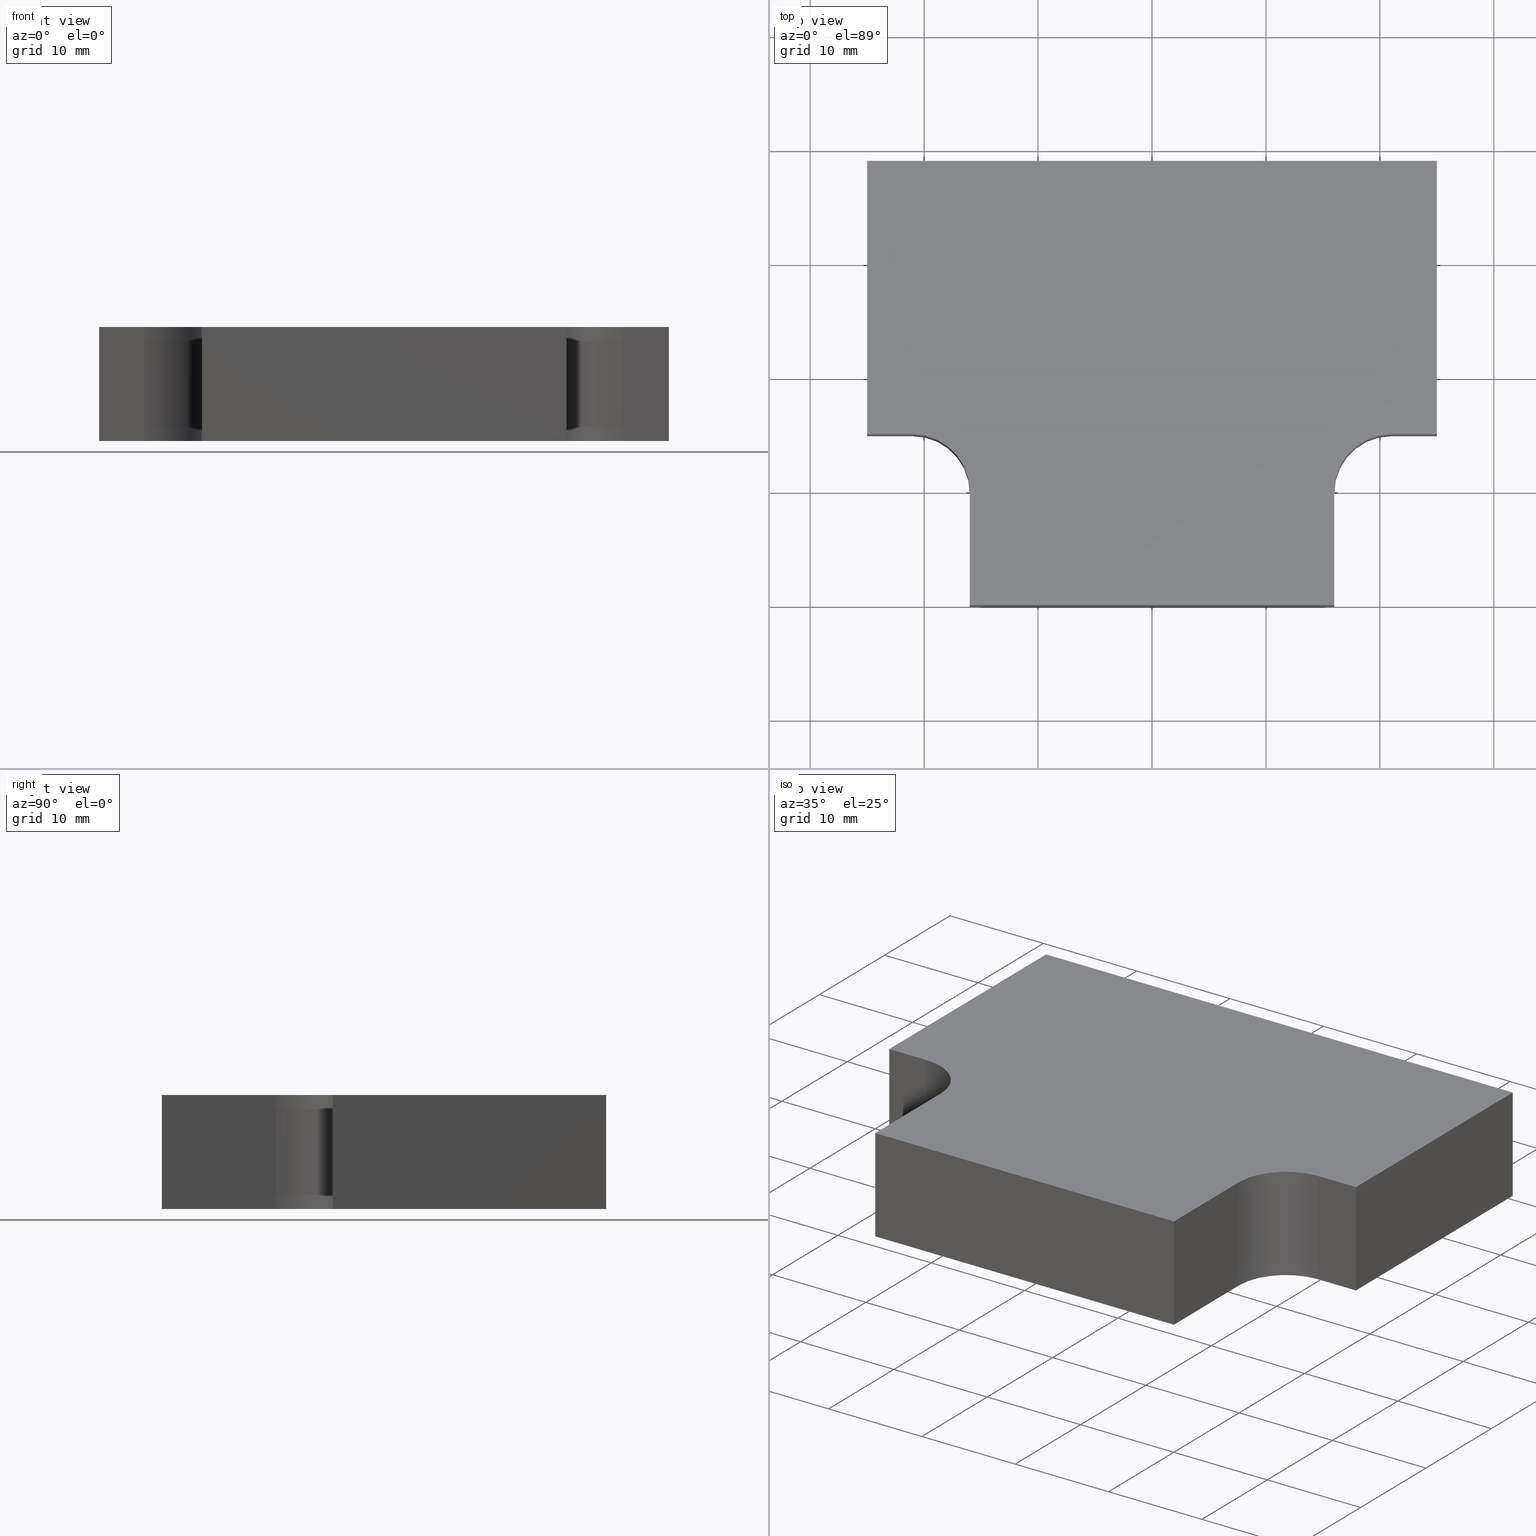
[diagram: canonical four-view strip — front | top / right | iso, engineering-drawing reading convention]
A machine part, canonical four-view strip (front | top / right | iso — engineering-drawing reading convention). The complete STEP part file that produces these views, byte-faithful:
ISO-10303-21;
HEADER;
/* Generated by software containing ST-Developer
 * from STEP Tools, Inc. (www.steptools.com) 
 */

FILE_DESCRIPTION(
/* description */ (''),
/* implementation_level */ '2;1');

FILE_NAME(
/* name */ 'E_3_01_04_15_00_WKZ-0182.stp',
/* time_stamp */ '2025-11-24T12:55:08+01:00',
/* author */ ('d.fischer'),
/* organization */ (''),
/* preprocessor_version */ 'ST-DEVELOPER v20',
/* originating_system */ 'Autodesk Inventor 2025',
/* authorisation */ '');

FILE_SCHEMA (('AUTOMOTIVE_DESIGN { 1 0 10303 214 3 1 1 }'));
ENDSEC;

DATA;
#10=MECHANICAL_DESIGN_GEOMETRIC_PRESENTATION_REPRESENTATION('',(#14,#15),
#395);
#11=SHAPE_REPRESENTATION_RELATIONSHIP('SRR','None',#402,#12);
#12=ADVANCED_BREP_SHAPE_REPRESENTATION('',(#13),#394);
#13=MANIFOLD_SOLID_BREP('Volumenk\X\F6rper1',#230);
#14=STYLED_ITEM('',(#412),#224);
#15=STYLED_ITEM('',(#411),#13);
#16=CYLINDRICAL_SURFACE('',#259,5.);
#17=CYLINDRICAL_SURFACE('',#264,5.);
#18=FACE_OUTER_BOUND('',#30,.T.);
#19=FACE_OUTER_BOUND('',#31,.T.);
#20=FACE_OUTER_BOUND('',#32,.T.);
#21=FACE_OUTER_BOUND('',#33,.T.);
#22=FACE_OUTER_BOUND('',#34,.T.);
#23=FACE_OUTER_BOUND('',#35,.T.);
#24=FACE_OUTER_BOUND('',#36,.T.);
#25=FACE_OUTER_BOUND('',#37,.T.);
#26=FACE_OUTER_BOUND('',#38,.T.);
#27=FACE_OUTER_BOUND('',#39,.T.);
#28=FACE_OUTER_BOUND('',#40,.T.);
#29=FACE_OUTER_BOUND('',#41,.T.);
#30=EDGE_LOOP('',(#148,#149,#150,#151,#152,#153,#154,#155,#156,#157));
#31=EDGE_LOOP('',(#158,#159,#160,#161));
#32=EDGE_LOOP('',(#162,#163,#164,#165));
#33=EDGE_LOOP('',(#166,#167,#168,#169));
#34=EDGE_LOOP('',(#170,#171,#172,#173));
#35=EDGE_LOOP('',(#174,#175,#176,#177));
#36=EDGE_LOOP('',(#178,#179,#180,#181));
#37=EDGE_LOOP('',(#182,#183,#184,#185));
#38=EDGE_LOOP('',(#186,#187,#188,#189));
#39=EDGE_LOOP('',(#190,#191,#192,#193));
#40=EDGE_LOOP('',(#194,#195,#196,#197));
#41=EDGE_LOOP('',(#198,#199,#200,#201,#202,#203,#204,#205,#206,#207));
#42=CIRCLE('',#254,5.);
#43=CIRCLE('',#255,5.);
#44=CIRCLE('',#260,5.);
#45=CIRCLE('',#265,5.);
#46=LINE('',#333,#72);
#47=LINE('',#335,#73);
#48=LINE('',#337,#74);
#49=LINE('',#339,#75);
#50=LINE('',#343,#76);
#51=LINE('',#345,#77);
#52=LINE('',#347,#78);
#53=LINE('',#350,#79);
#54=LINE('',#354,#80);
#55=LINE('',#355,#81);
#56=LINE('',#356,#82);
#57=LINE('',#359,#83);
#58=LINE('',#360,#84);
#59=LINE('',#363,#85);
#60=LINE('',#364,#86);
#61=LINE('',#368,#87);
#62=LINE('',#371,#88);
#63=LINE('',#372,#89);
#64=LINE('',#375,#90);
#65=LINE('',#376,#91);
#66=LINE('',#379,#92);
#67=LINE('',#380,#93);
#68=LINE('',#384,#94);
#69=LINE('',#387,#95);
#70=LINE('',#388,#96);
#71=LINE('',#390,#97);
#72=VECTOR('',#273,10.);
#73=VECTOR('',#274,10.);
#74=VECTOR('',#275,10.);
#75=VECTOR('',#276,10.);
#76=VECTOR('',#279,10.);
#77=VECTOR('',#280,10.);
#78=VECTOR('',#281,10.);
#79=VECTOR('',#284,10.);
#80=VECTOR('',#287,10.);
#81=VECTOR('',#288,10.);
#82=VECTOR('',#289,10.);
#83=VECTOR('',#292,10.);
#84=VECTOR('',#293,10.);
#85=VECTOR('',#296,10.);
#86=VECTOR('',#297,10.);
#87=VECTOR('',#302,10.);
#88=VECTOR('',#305,10.);
#89=VECTOR('',#306,10.);
#90=VECTOR('',#309,10.);
#91=VECTOR('',#310,10.);
#92=VECTOR('',#313,10.);
#93=VECTOR('',#314,10.);
#94=VECTOR('',#319,10.);
#95=VECTOR('',#322,10.);
#96=VECTOR('',#323,10.);
#97=VECTOR('',#326,10.);
#98=VERTEX_POINT('',#331);
#99=VERTEX_POINT('',#332);
#100=VERTEX_POINT('',#334);
#101=VERTEX_POINT('',#336);
#102=VERTEX_POINT('',#338);
#103=VERTEX_POINT('',#340);
#104=VERTEX_POINT('',#342);
#105=VERTEX_POINT('',#344);
#106=VERTEX_POINT('',#346);
#107=VERTEX_POINT('',#348);
#108=VERTEX_POINT('',#352);
#109=VERTEX_POINT('',#353);
#110=VERTEX_POINT('',#358);
#111=VERTEX_POINT('',#362);
#112=VERTEX_POINT('',#366);
#113=VERTEX_POINT('',#370);
#114=VERTEX_POINT('',#374);
#115=VERTEX_POINT('',#378);
#116=VERTEX_POINT('',#382);
#117=VERTEX_POINT('',#386);
#118=EDGE_CURVE('',#98,#99,#46,.T.);
#119=EDGE_CURVE('',#100,#98,#47,.T.);
#120=EDGE_CURVE('',#101,#100,#48,.T.);
#121=EDGE_CURVE('',#102,#101,#49,.T.);
#122=EDGE_CURVE('',#103,#102,#42,.T.);
#123=EDGE_CURVE('',#104,#103,#50,.T.);
#124=EDGE_CURVE('',#105,#104,#51,.T.);
#125=EDGE_CURVE('',#106,#105,#52,.T.);
#126=EDGE_CURVE('',#107,#106,#43,.T.);
#127=EDGE_CURVE('',#99,#107,#53,.T.);
#128=EDGE_CURVE('',#108,#109,#54,.T.);
#129=EDGE_CURVE('',#109,#100,#55,.T.);
#130=EDGE_CURVE('',#98,#108,#56,.T.);
#131=EDGE_CURVE('',#109,#110,#57,.T.);
#132=EDGE_CURVE('',#110,#101,#58,.T.);
#133=EDGE_CURVE('',#110,#111,#59,.T.);
#134=EDGE_CURVE('',#111,#102,#60,.T.);
#135=EDGE_CURVE('',#111,#112,#44,.T.);
#136=EDGE_CURVE('',#112,#103,#61,.T.);
#137=EDGE_CURVE('',#112,#113,#62,.T.);
#138=EDGE_CURVE('',#113,#104,#63,.T.);
#139=EDGE_CURVE('',#113,#114,#64,.T.);
#140=EDGE_CURVE('',#114,#105,#65,.T.);
#141=EDGE_CURVE('',#114,#115,#66,.T.);
#142=EDGE_CURVE('',#115,#106,#67,.T.);
#143=EDGE_CURVE('',#115,#116,#45,.T.);
#144=EDGE_CURVE('',#116,#107,#68,.T.);
#145=EDGE_CURVE('',#116,#117,#69,.T.);
#146=EDGE_CURVE('',#117,#99,#70,.T.);
#147=EDGE_CURVE('',#117,#108,#71,.T.);
#148=ORIENTED_EDGE('',*,*,#118,.F.);
#149=ORIENTED_EDGE('',*,*,#119,.F.);
#150=ORIENTED_EDGE('',*,*,#120,.F.);
#151=ORIENTED_EDGE('',*,*,#121,.F.);
#152=ORIENTED_EDGE('',*,*,#122,.F.);
#153=ORIENTED_EDGE('',*,*,#123,.F.);
#154=ORIENTED_EDGE('',*,*,#124,.F.);
#155=ORIENTED_EDGE('',*,*,#125,.F.);
#156=ORIENTED_EDGE('',*,*,#126,.F.);
#157=ORIENTED_EDGE('',*,*,#127,.F.);
#158=ORIENTED_EDGE('',*,*,#128,.T.);
#159=ORIENTED_EDGE('',*,*,#129,.T.);
#160=ORIENTED_EDGE('',*,*,#119,.T.);
#161=ORIENTED_EDGE('',*,*,#130,.T.);
#162=ORIENTED_EDGE('',*,*,#131,.T.);
#163=ORIENTED_EDGE('',*,*,#132,.T.);
#164=ORIENTED_EDGE('',*,*,#120,.T.);
#165=ORIENTED_EDGE('',*,*,#129,.F.);
#166=ORIENTED_EDGE('',*,*,#133,.T.);
#167=ORIENTED_EDGE('',*,*,#134,.T.);
#168=ORIENTED_EDGE('',*,*,#121,.T.);
#169=ORIENTED_EDGE('',*,*,#132,.F.);
#170=ORIENTED_EDGE('',*,*,#135,.T.);
#171=ORIENTED_EDGE('',*,*,#136,.T.);
#172=ORIENTED_EDGE('',*,*,#122,.T.);
#173=ORIENTED_EDGE('',*,*,#134,.F.);
#174=ORIENTED_EDGE('',*,*,#137,.T.);
#175=ORIENTED_EDGE('',*,*,#138,.T.);
#176=ORIENTED_EDGE('',*,*,#123,.T.);
#177=ORIENTED_EDGE('',*,*,#136,.F.);
#178=ORIENTED_EDGE('',*,*,#139,.T.);
#179=ORIENTED_EDGE('',*,*,#140,.T.);
#180=ORIENTED_EDGE('',*,*,#124,.T.);
#181=ORIENTED_EDGE('',*,*,#138,.F.);
#182=ORIENTED_EDGE('',*,*,#141,.T.);
#183=ORIENTED_EDGE('',*,*,#142,.T.);
#184=ORIENTED_EDGE('',*,*,#125,.T.);
#185=ORIENTED_EDGE('',*,*,#140,.F.);
#186=ORIENTED_EDGE('',*,*,#143,.T.);
#187=ORIENTED_EDGE('',*,*,#144,.T.);
#188=ORIENTED_EDGE('',*,*,#126,.T.);
#189=ORIENTED_EDGE('',*,*,#142,.F.);
#190=ORIENTED_EDGE('',*,*,#145,.T.);
#191=ORIENTED_EDGE('',*,*,#146,.T.);
#192=ORIENTED_EDGE('',*,*,#127,.T.);
#193=ORIENTED_EDGE('',*,*,#144,.F.);
#194=ORIENTED_EDGE('',*,*,#147,.T.);
#195=ORIENTED_EDGE('',*,*,#130,.F.);
#196=ORIENTED_EDGE('',*,*,#118,.T.);
#197=ORIENTED_EDGE('',*,*,#146,.F.);
#198=ORIENTED_EDGE('',*,*,#128,.F.);
#199=ORIENTED_EDGE('',*,*,#147,.F.);
#200=ORIENTED_EDGE('',*,*,#145,.F.);
#201=ORIENTED_EDGE('',*,*,#143,.F.);
#202=ORIENTED_EDGE('',*,*,#141,.F.);
#203=ORIENTED_EDGE('',*,*,#139,.F.);
#204=ORIENTED_EDGE('',*,*,#137,.F.);
#205=ORIENTED_EDGE('',*,*,#135,.F.);
#206=ORIENTED_EDGE('',*,*,#133,.F.);
#207=ORIENTED_EDGE('',*,*,#131,.F.);
#208=PLANE('',#253);
#209=PLANE('',#256);
#210=PLANE('',#257);
#211=PLANE('',#258);
#212=PLANE('',#261);
#213=PLANE('',#262);
#214=PLANE('',#263);
#215=PLANE('',#266);
#216=PLANE('',#267);
#217=PLANE('',#268);
#218=ADVANCED_FACE('',(#18),#208,.F.);
#219=ADVANCED_FACE('',(#19),#209,.T.);
#220=ADVANCED_FACE('',(#20),#210,.T.);
#221=ADVANCED_FACE('',(#21),#211,.T.);
#222=ADVANCED_FACE('',(#22),#16,.F.);
#223=ADVANCED_FACE('',(#23),#212,.T.);
#224=ADVANCED_FACE('',(#24),#213,.T.);
#225=ADVANCED_FACE('',(#25),#214,.T.);
#226=ADVANCED_FACE('',(#26),#17,.F.);
#227=ADVANCED_FACE('',(#27),#215,.T.);
#228=ADVANCED_FACE('',(#28),#216,.T.);
#229=ADVANCED_FACE('',(#29),#217,.T.);
#230=CLOSED_SHELL('',(#218,#219,#220,#221,#222,#223,#224,#225,#226,#227,
#228,#229));
#231=DERIVED_UNIT_ELEMENT(#234,1.);
#232=DERIVED_UNIT_ELEMENT(#397,-3.);
#233=DIMENSIONAL_EXPONENTS(0.,1.,0.,0.,0.,0.,0.);
#234=(
CONVERSION_BASED_UNIT('gram',#236)
MASS_UNIT()
NAMED_UNIT(#233)
);
#235=(
MASS_UNIT()
NAMED_UNIT(*)
SI_UNIT(.KILO.,.GRAM.)
);
#236=MASS_MEASURE_WITH_UNIT(MASS_MEASURE(0.001),#235);
#237=DERIVED_UNIT((#231,#232));
#238=MEASURE_REPRESENTATION_ITEM('density measure',
POSITIVE_RATIO_MEASURE(8.03),#237);
#239=PROPERTY_DEFINITION_REPRESENTATION(#244,#241);
#240=PROPERTY_DEFINITION_REPRESENTATION(#245,#242);
#241=REPRESENTATION('material name',(#243),#394);
#242=REPRESENTATION('density',(#238),#394);
#243=DESCRIPTIVE_REPRESENTATION_ITEM('1.4301','1.4301');
#244=PROPERTY_DEFINITION('material property','material name',#404);
#245=PROPERTY_DEFINITION('material property','density of part',#404);
#246=DATE_TIME_ROLE('creation_date');
#247=APPLIED_DATE_AND_TIME_ASSIGNMENT(#248,#246,(#404));
#248=DATE_AND_TIME(#249,#250);
#249=CALENDAR_DATE(2011,17,10);
#250=LOCAL_TIME(0,0,0.,#251);
#251=COORDINATED_UNIVERSAL_TIME_OFFSET(0,0,.BEHIND.);
#252=AXIS2_PLACEMENT_3D('',#329,#269,#270);
#253=AXIS2_PLACEMENT_3D('',#330,#271,#272);
#254=AXIS2_PLACEMENT_3D('',#341,#277,#278);
#255=AXIS2_PLACEMENT_3D('',#349,#282,#283);
#256=AXIS2_PLACEMENT_3D('',#351,#285,#286);
#257=AXIS2_PLACEMENT_3D('',#357,#290,#291);
#258=AXIS2_PLACEMENT_3D('',#361,#294,#295);
#259=AXIS2_PLACEMENT_3D('',#365,#298,#299);
#260=AXIS2_PLACEMENT_3D('',#367,#300,#301);
#261=AXIS2_PLACEMENT_3D('',#369,#303,#304);
#262=AXIS2_PLACEMENT_3D('',#373,#307,#308);
#263=AXIS2_PLACEMENT_3D('',#377,#311,#312);
#264=AXIS2_PLACEMENT_3D('',#381,#315,#316);
#265=AXIS2_PLACEMENT_3D('',#383,#317,#318);
#266=AXIS2_PLACEMENT_3D('',#385,#320,#321);
#267=AXIS2_PLACEMENT_3D('',#389,#324,#325);
#268=AXIS2_PLACEMENT_3D('',#391,#327,#328);
#269=DIRECTION('axis',(0.,0.,1.));
#270=DIRECTION('refdir',(1.,0.,0.));
#271=DIRECTION('center_axis',(0.,0.,1.));
#272=DIRECTION('ref_axis',(1.,0.,0.));
#273=DIRECTION('',(0.,-1.,0.));
#274=DIRECTION('',(-1.,1.77635683940025E-16,0.));
#275=DIRECTION('',(0.,1.,0.));
#276=DIRECTION('',(1.,0.,0.));
#277=DIRECTION('center_axis',(0.,0.,-1.));
#278=DIRECTION('ref_axis',(-8.88178419700125E-16,1.,0.));
#279=DIRECTION('',(2.22044604925031E-16,1.,0.));
#280=DIRECTION('',(1.,-1.22464679914735E-16,0.));
#281=DIRECTION('',(2.22044604925031E-16,-1.,0.));
#282=DIRECTION('center_axis',(0.,0.,-1.));
#283=DIRECTION('ref_axis',(1.,2.22044604925031E-16,0.));
#284=DIRECTION('',(1.,0.,0.));
#285=DIRECTION('center_axis',(-1.77635683940025E-16,1.,0.));
#286=DIRECTION('ref_axis',(0.,0.,1.));
#287=DIRECTION('',(1.,1.77635683940025E-16,0.));
#288=DIRECTION('',(0.,0.,-1.));
#289=DIRECTION('',(0.,0.,1.));
#290=DIRECTION('center_axis',(1.,0.,0.));
#291=DIRECTION('ref_axis',(0.,0.,-1.));
#292=DIRECTION('',(0.,-1.,0.));
#293=DIRECTION('',(0.,0.,-1.));
#294=DIRECTION('center_axis',(0.,-1.,0.));
#295=DIRECTION('ref_axis',(0.,0.,-1.));
#296=DIRECTION('',(-1.,0.,0.));
#297=DIRECTION('',(0.,0.,-1.));
#298=DIRECTION('center_axis',(0.,0.,1.));
#299=DIRECTION('ref_axis',(-8.88178419700125E-16,1.,0.));
#300=DIRECTION('center_axis',(0.,0.,1.));
#301=DIRECTION('ref_axis',(-8.88178419700125E-16,1.,0.));
#302=DIRECTION('',(0.,0.,-1.));
#303=DIRECTION('center_axis',(1.,-2.22044604925031E-16,0.));
#304=DIRECTION('ref_axis',(0.,0.,-1.));
#305=DIRECTION('',(-2.22044604925031E-16,-1.,0.));
#306=DIRECTION('',(0.,0.,-1.));
#307=DIRECTION('center_axis',(1.22464679914735E-16,-1.,0.));
#308=DIRECTION('ref_axis',(0.,0.,-1.));
#309=DIRECTION('',(-1.,-1.22464679914735E-16,0.));
#310=DIRECTION('',(0.,0.,-1.));
#311=DIRECTION('center_axis',(-1.,-2.22044604925031E-16,0.));
#312=DIRECTION('ref_axis',(0.,0.,1.));
#313=DIRECTION('',(-2.22044604925031E-16,1.,0.));
#314=DIRECTION('',(0.,0.,-1.));
#315=DIRECTION('center_axis',(0.,0.,1.));
#316=DIRECTION('ref_axis',(1.,2.22044604925031E-16,0.));
#317=DIRECTION('center_axis',(0.,0.,1.));
#318=DIRECTION('ref_axis',(1.,2.22044604925031E-16,0.));
#319=DIRECTION('',(0.,0.,-1.));
#320=DIRECTION('center_axis',(0.,-1.,0.));
#321=DIRECTION('ref_axis',(0.,0.,-1.));
#322=DIRECTION('',(-1.,0.,0.));
#323=DIRECTION('',(0.,0.,-1.));
#324=DIRECTION('center_axis',(-1.,0.,0.));
#325=DIRECTION('ref_axis',(0.,0.,1.));
#326=DIRECTION('',(0.,1.,0.));
#327=DIRECTION('center_axis',(0.,0.,1.));
#328=DIRECTION('ref_axis',(1.,0.,0.));
#329=CARTESIAN_POINT('',(0.,0.,0.));
#330=CARTESIAN_POINT('Origin',(0.,21.1389886801068,-5.));
#331=CARTESIAN_POINT('',(-25.,39.,-5.));
#332=CARTESIAN_POINT('',(-25.,15.,-5.));
#333=CARTESIAN_POINT('',(-25.,15.,-5.));
#334=CARTESIAN_POINT('',(25.,39.,-5.));
#335=CARTESIAN_POINT('',(-25.,39.,-5.));
#336=CARTESIAN_POINT('',(25.,15.,-5.));
#337=CARTESIAN_POINT('',(25.,39.,-5.));
#338=CARTESIAN_POINT('',(21.,15.,-5.));
#339=CARTESIAN_POINT('',(25.,15.,-5.));
#340=CARTESIAN_POINT('',(16.,10.,-5.));
#341=CARTESIAN_POINT('Origin',(21.,10.,-5.));
#342=CARTESIAN_POINT('',(16.,-9.97995764079477E-16,-5.));
#343=CARTESIAN_POINT('',(16.,10.,-5.));
#344=CARTESIAN_POINT('',(-16.,-9.97995764079477E-16,-5.));
#345=CARTESIAN_POINT('',(16.,-9.97995764079477E-16,-5.));
#346=CARTESIAN_POINT('',(-16.,10.,-5.));
#347=CARTESIAN_POINT('',(-16.,-9.97995764079477E-16,-5.));
#348=CARTESIAN_POINT('',(-21.,15.,-5.));
#349=CARTESIAN_POINT('Origin',(-21.,10.,-5.));
#350=CARTESIAN_POINT('',(-21.,15.,-5.));
#351=CARTESIAN_POINT('Origin',(-5.55111512312578E-16,39.,0.));
#352=CARTESIAN_POINT('',(-25.,39.,5.));
#353=CARTESIAN_POINT('',(25.,39.,5.));
#354=CARTESIAN_POINT('',(0.,39.,5.));
#355=CARTESIAN_POINT('',(25.,39.,0.));
#356=CARTESIAN_POINT('',(-25.,39.,0.));
#357=CARTESIAN_POINT('Origin',(25.,39.,0.));
#358=CARTESIAN_POINT('',(25.,15.,5.));
#359=CARTESIAN_POINT('',(25.,39.,5.));
#360=CARTESIAN_POINT('',(25.,15.,0.));
#361=CARTESIAN_POINT('Origin',(25.,15.,0.));
#362=CARTESIAN_POINT('',(21.,15.,5.));
#363=CARTESIAN_POINT('',(25.,15.,5.));
#364=CARTESIAN_POINT('',(21.,15.,0.));
#365=CARTESIAN_POINT('Origin',(21.,10.,0.));
#366=CARTESIAN_POINT('',(16.,10.,5.));
#367=CARTESIAN_POINT('Origin',(21.,10.,5.));
#368=CARTESIAN_POINT('',(16.,10.,0.));
#369=CARTESIAN_POINT('Origin',(16.,10.,0.));
#370=CARTESIAN_POINT('',(16.,-9.97995764079477E-16,5.));
#371=CARTESIAN_POINT('',(16.,10.,5.));
#372=CARTESIAN_POINT('',(16.,-9.97995764079477E-16,0.));
#373=CARTESIAN_POINT('Origin',(2.22044604925031E-15,9.61439114556288E-16,
0.));
#374=CARTESIAN_POINT('',(-16.,-9.97995764079477E-16,5.));
#375=CARTESIAN_POINT('',(2.22044604925031E-15,9.61439114556288E-16,5.));
#376=CARTESIAN_POINT('',(-16.,-9.97995764079477E-16,0.));
#377=CARTESIAN_POINT('Origin',(-16.,-9.97995764079477E-16,0.));
#378=CARTESIAN_POINT('',(-16.,10.,5.));
#379=CARTESIAN_POINT('',(-16.,-9.97995764079477E-16,5.));
#380=CARTESIAN_POINT('',(-16.,10.,0.));
#381=CARTESIAN_POINT('Origin',(-21.,10.,0.));
#382=CARTESIAN_POINT('',(-21.,15.,5.));
#383=CARTESIAN_POINT('Origin',(-21.,10.,5.));
#384=CARTESIAN_POINT('',(-21.,15.,0.));
#385=CARTESIAN_POINT('Origin',(-21.,15.,0.));
#386=CARTESIAN_POINT('',(-25.,15.,5.));
#387=CARTESIAN_POINT('',(-21.,15.,5.));
#388=CARTESIAN_POINT('',(-25.,15.,0.));
#389=CARTESIAN_POINT('Origin',(-25.,15.,0.));
#390=CARTESIAN_POINT('',(-25.,15.,5.));
#391=CARTESIAN_POINT('Origin',(0.,21.1389886801068,5.));
#392=UNCERTAINTY_MEASURE_WITH_UNIT(LENGTH_MEASURE(0.01),#396,
'DISTANCE_ACCURACY_VALUE',
'Maximum model space distance between geometric entities at asserted c
onnectivities');
#393=UNCERTAINTY_MEASURE_WITH_UNIT(LENGTH_MEASURE(0.01),#396,
'DISTANCE_ACCURACY_VALUE',
'Maximum model space distance between geometric entities at asserted c
onnectivities');
#394=(
GEOMETRIC_REPRESENTATION_CONTEXT(3)
GLOBAL_UNCERTAINTY_ASSIGNED_CONTEXT((#392))
GLOBAL_UNIT_ASSIGNED_CONTEXT((#396,#398,#399))
REPRESENTATION_CONTEXT('','3D')
);
#395=(
GEOMETRIC_REPRESENTATION_CONTEXT(3)
GLOBAL_UNCERTAINTY_ASSIGNED_CONTEXT((#393))
GLOBAL_UNIT_ASSIGNED_CONTEXT((#396,#398,#399))
REPRESENTATION_CONTEXT('','3D')
);
#396=(
LENGTH_UNIT()
NAMED_UNIT(*)
SI_UNIT(.MILLI.,.METRE.)
);
#397=(
LENGTH_UNIT()
NAMED_UNIT(*)
SI_UNIT(.CENTI.,.METRE.)
);
#398=(
NAMED_UNIT(*)
PLANE_ANGLE_UNIT()
SI_UNIT($,.RADIAN.)
);
#399=(
NAMED_UNIT(*)
SI_UNIT($,.STERADIAN.)
SOLID_ANGLE_UNIT()
);
#400=SHAPE_DEFINITION_REPRESENTATION(#401,#402);
#401=PRODUCT_DEFINITION_SHAPE('',$,#404);
#402=SHAPE_REPRESENTATION('',(#252),#394);
#403=PRODUCT_DEFINITION_CONTEXT('part definition',#408,'design');
#404=PRODUCT_DEFINITION('WKZ-0182','E_3_01_04_15_00_WKZ-0182',#405,#403);
#405=PRODUCT_DEFINITION_FORMATION('',$,#410);
#406=PRODUCT_RELATED_PRODUCT_CATEGORY('E_3_01_04_15_00_WKZ-0182',
'E_3_01_04_15_00_WKZ-0182',(#410));
#407=APPLICATION_PROTOCOL_DEFINITION('international standard',
'automotive_design',2009,#408);
#408=APPLICATION_CONTEXT(
'Core Data for Automotive Mechanical Design Process');
#409=PRODUCT_CONTEXT('part definition',#408,'mechanical');
#410=PRODUCT('WKZ-0182','E_3_01_04_15_00_WKZ-0182',$,(#409));
#411=PRESENTATION_STYLE_ASSIGNMENT((#413));
#412=PRESENTATION_STYLE_ASSIGNMENT((#414));
#413=SURFACE_STYLE_USAGE(.BOTH.,#417);
#414=SURFACE_STYLE_USAGE(.BOTH.,#418);
#415=SURFACE_STYLE_RENDERING_WITH_PROPERTIES($,#425,(#416));
#416=SURFACE_STYLE_TRANSPARENT(0.);
#417=SURFACE_SIDE_STYLE('',(#419,#415));
#418=SURFACE_SIDE_STYLE('',(#420));
#419=SURFACE_STYLE_FILL_AREA(#421);
#420=SURFACE_STYLE_FILL_AREA(#422);
#421=FILL_AREA_STYLE('',(#423));
#422=FILL_AREA_STYLE('',(#424));
#423=FILL_AREA_STYLE_COLOUR('',#425);
#424=FILL_AREA_STYLE_COLOUR('',#426);
#425=COLOUR_RGB('',0.92156862745098,0.92156862745098,0.92156862745098);
#426=COLOUR_RGB('',0.16078431372549,0.16078431372549,0.16078431372549);
ENDSEC;
END-ISO-10303-21;
